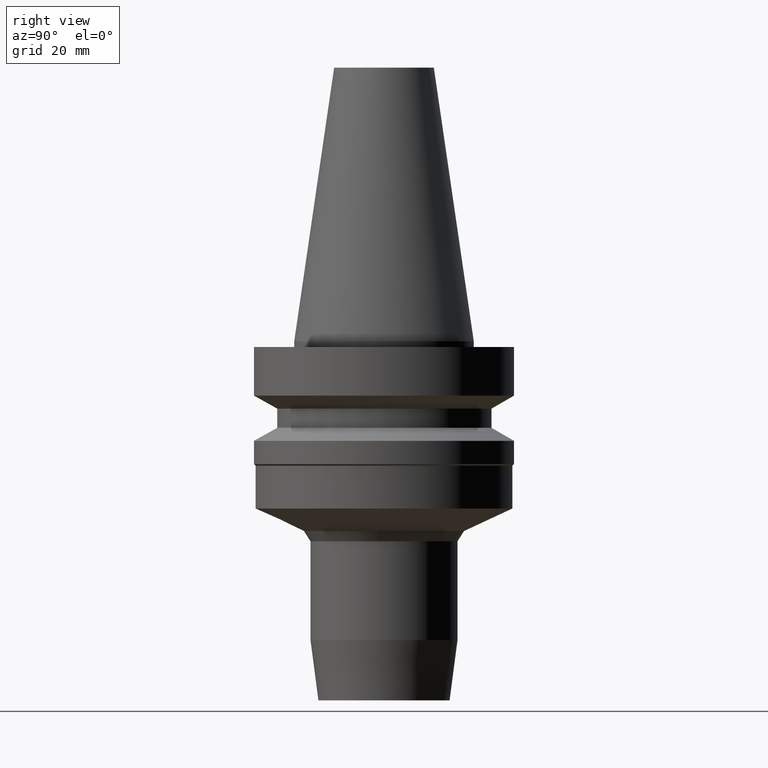
[diagram: clean part render]
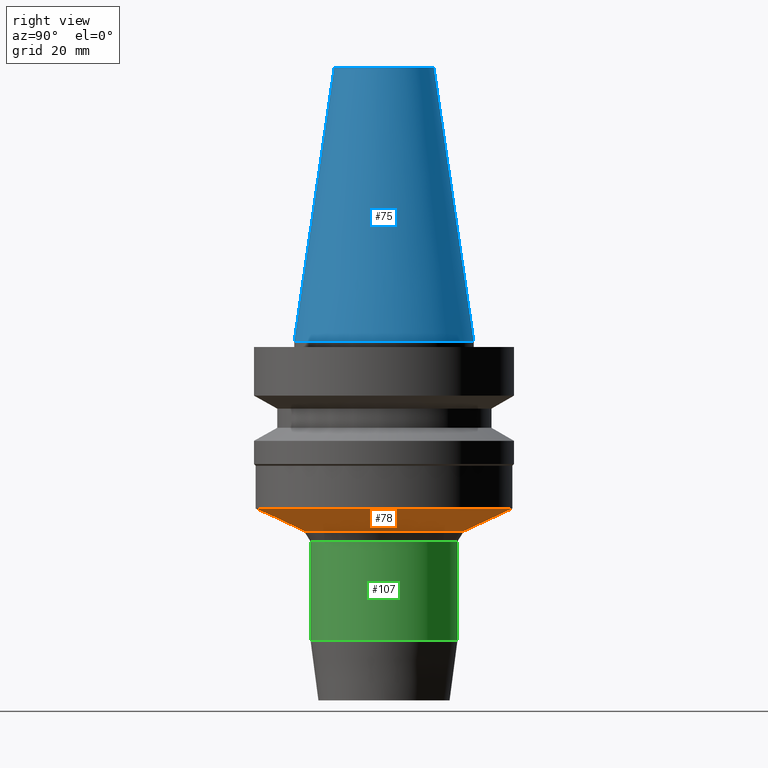
[diagram: same view with three faces highlighted in distinct colors, each labeled with its STEP entity id]
A machine part, right view with three faces highlighted in distinct colors.
Their STEP definitions:

[orange] entity #78 — the highlighted conical surface has half-angle 65 deg.
#78=ADVANCED_FACE('Unnamed[1]',(#188,#189),#190,.T.);
#86=EDGE_CURVE('Unnamed[1]',#201,#201,#202,.T.);
#94=EDGE_CURVE('Unnamed[1]',#214,#214,#215,.T.);
#188=FACE_BOUND('',#329,.T.);
#189=FACE_BOUND('',#330,.T.);
#190=CONICAL_SURFACE('',#331,18.4273817382593,1.13446401379631);
#201=VERTEX_POINT('',#345);
#202=CIRCLE('',#346,14.1547634765173);
#214=VERTEX_POINT('',#361);
#215=CIRCLE('',#362,22.7000000000012);
#329=EDGE_LOOP('',(#482));
#330=EDGE_LOOP('',(#483));
#331=AXIS2_PLACEMENT_3D('',#484,#485,#486);
#345=CARTESIAN_POINT('',(2.05429212232342E-015,14.1547634765173,-33.5491363510475));
#346=AXIS2_PLACEMENT_3D('',#498,#499,#500);
#361=CARTESIAN_POINT('',(1.81029905201999E-015,22.7000000000012,-29.5644271194012));
#362=AXIS2_PLACEMENT_3D('',#513,#514,#515);
#482=ORIENTED_EDGE('',*,*,#86,.F.);
#483=ORIENTED_EDGE('',*,*,#94,.T.);
#484=CARTESIAN_POINT('',(1.93229558717171E-015,3.86459117434342E-015,-31.5567817352244));
#485=DIRECTION('',(-6.12323399573677E-017,-1.22464679914763E-016,1.0));
#486=DIRECTION('',(-1.23259516440764E-032,1.0,1.22464679914763E-016));
#498=CARTESIAN_POINT('',(2.05429212232342E-015,4.10858424464685E-015,-33.5491363510475));
#499=DIRECTION('',(6.12323399573677E-017,1.22464679914711E-016,-1.0));
#500=DIRECTION('',(-1.23259516440768E-032,1.0,1.22464679914711E-016));
#513=CARTESIAN_POINT('',(1.81029905201999E-015,3.62059810403999E-015,-29.5644271194012));
#514=DIRECTION('',(6.12323399573677E-017,1.2246467991476E-016,-1.0));
#515=DIRECTION('',(-1.232595164408E-032,1.0,1.2246467991476E-016));

[blue] entity #75 — the highlighted conical surface has half-angle 8.297 deg.
#75=ADVANCED_FACE('Unnamed[1]',(#183,#184),#185,.T.);
#114=EDGE_CURVE('Unnamed[1]',#245,#245,#246,.T.);
#122=EDGE_CURVE('Unnamed[1]',#257,#257,#258,.T.);
#183=FACE_BOUND('',#323,.T.);
#184=FACE_BOUND('',#324,.T.);
#185=CONICAL_SURFACE('',#325,12.3457500009933,0.144815870013618);
#245=VERTEX_POINT('',#400);
#246=CIRCLE('',#401,8.81650000198669);
#257=VERTEX_POINT('',#416);
#258=CIRCLE('',#417,15.875);
#323=EDGE_LOOP('',(#476));
#324=EDGE_LOOP('',(#477));
#325=AXIS2_PLACEMENT_3D('',#478,#479,#480);
#400=CARTESIAN_POINT('',(-2.96364525393659E-015,8.81650000198669,48.4));
#401=AXIS2_PLACEMENT_3D('',#548,#549,#550);
#416=CARTESIAN_POINT('',(-1.95674482349743E-031,15.875,1.94412679364642E-015));
#417=AXIS2_PLACEMENT_3D('',#560,#561,#562);
#476=ORIENTED_EDGE('',*,*,#122,.F.);
#477=ORIENTED_EDGE('',*,*,#114,.T.);
#478=CARTESIAN_POINT('',(-1.4818226269683E-015,-2.96364525393659E-015,24.2));
#479=DIRECTION('',(6.12323399573677E-017,1.22464679914765E-016,-1.0));
#480=DIRECTION('',(-1.23259516440785E-032,1.0,1.22464679914765E-016));
#548=CARTESIAN_POINT('',(-2.96364525393659E-015,-5.92729050787319E-015,48.4));
#549=DIRECTION('',(6.12323399573677E-017,1.22464679914764E-016,-1.0));
#550=DIRECTION('',(-1.23259516440789E-032,1.0,1.22464679914764E-016));
#560=CARTESIAN_POINT('',(0.0,0.0,0.0));
#561=DIRECTION('',(6.12323399573677E-017,1.22464679914714E-016,-1.0));
#562=DIRECTION('',(-1.23259516440783E-032,1.0,1.22464679914714E-016));

[green] entity #107 — the highlighted cylindrical surface (bore or boss wall) has radius 13 mm, axis along (0, 0, -1).
#107=ADVANCED_FACE('Unnamed[1]',(#234,#235),#236,.T.);
#118=EDGE_CURVE('Unnamed[1]',#251,#251,#252,.T.);
#132=EDGE_CURVE('Unnamed[1]',#271,#271,#272,.T.);
#234=FACE_BOUND('',#386,.T.);
#235=FACE_BOUND('',#387,.T.);
#236=CYLINDRICAL_SURFACE('',#388,12.9999999999999);
#251=VERTEX_POINT('',#408);
#252=CIRCLE('',#409,13.0);
#271=VERTEX_POINT('',#433);
#272=CIRCLE('',#434,12.9999999999999);
#386=EDGE_LOOP('',(#535));
#387=EDGE_LOOP('',(#536));
#388=AXIS2_PLACEMENT_3D('',#537,#538,#539);
#408=CARTESIAN_POINT('',(2.16528281536698E-015,13.0,-35.3617519251189));
#409=AXIS2_PLACEMENT_3D('',#554,#555,#556);
#433=CARTESIAN_POINT('',(3.23517214226456E-015,12.9999999999999,-52.8343706041123));
#434=AXIS2_PLACEMENT_3D('',#573,#574,#575);
#535=ORIENTED_EDGE('',*,*,#132,.F.);
#536=ORIENTED_EDGE('',*,*,#118,.T.);
#537=CARTESIAN_POINT('',(2.70022747881577E-015,5.40045495763154E-015,-44.0980612646156));
#538=DIRECTION('',(6.12323399573677E-017,1.22464679914714E-016,-1.0));
#539=DIRECTION('',(-1.23259516440784E-032,1.0,1.22464679914714E-016));
#554=CARTESIAN_POINT('',(2.16528281536698E-015,4.33056563073396E-015,-35.3617519251189));
#555=DIRECTION('',(6.12323399573677E-017,1.22464679914714E-016,-1.0));
#556=DIRECTION('',(-1.23259516440783E-032,1.0,1.22464679914714E-016));
#573=CARTESIAN_POINT('',(3.23517214226456E-015,6.47034428452911E-015,-52.8343706041123));
#574=DIRECTION('',(6.12323399573676E-017,1.22464679914715E-016,-1.0));
#575=DIRECTION('',(-1.23259516440784E-032,1.0,1.22464679914715E-016));